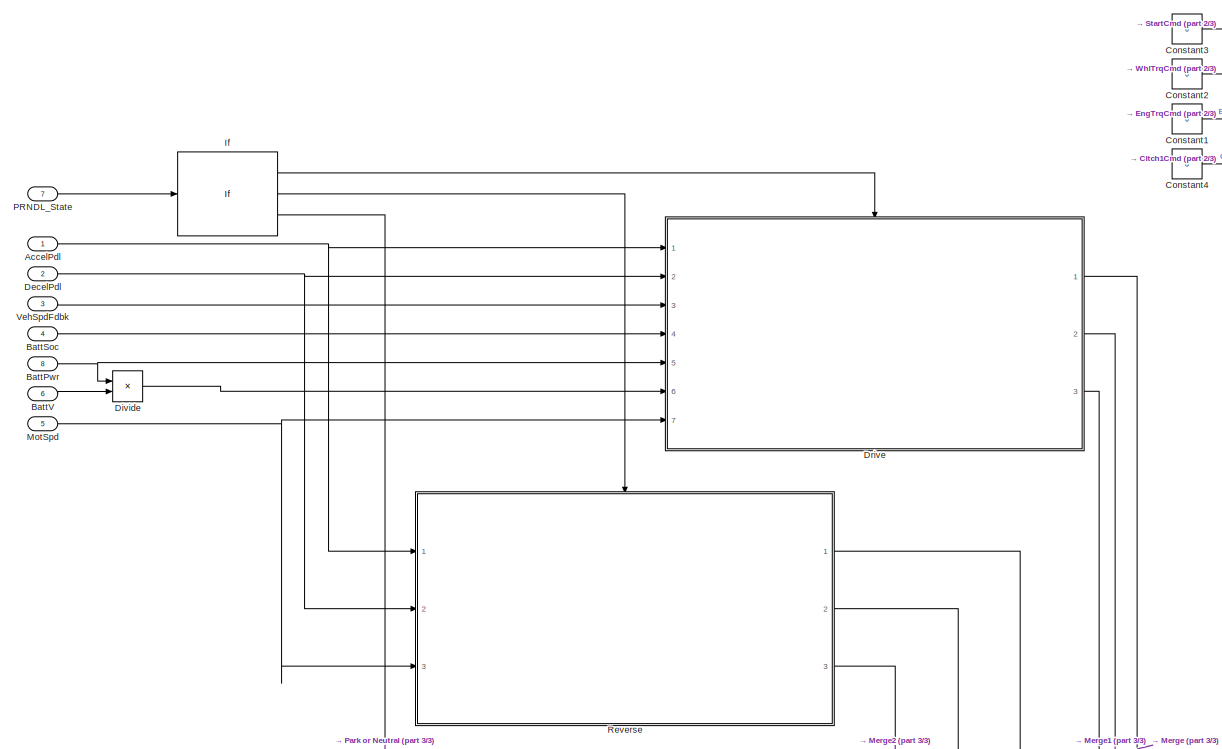
[diagram: root canvas - part 1/3, full width, middle band]
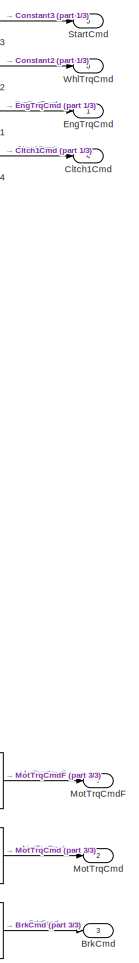
[diagram: root canvas - part 2/3, right side, full height]
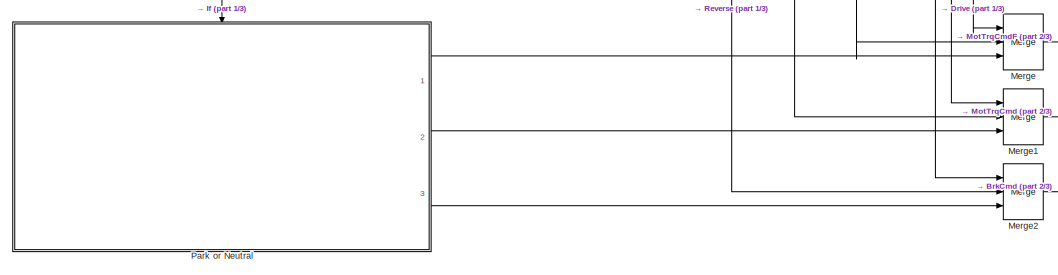
[diagram: root canvas - part 3/3, full width, bottom band]
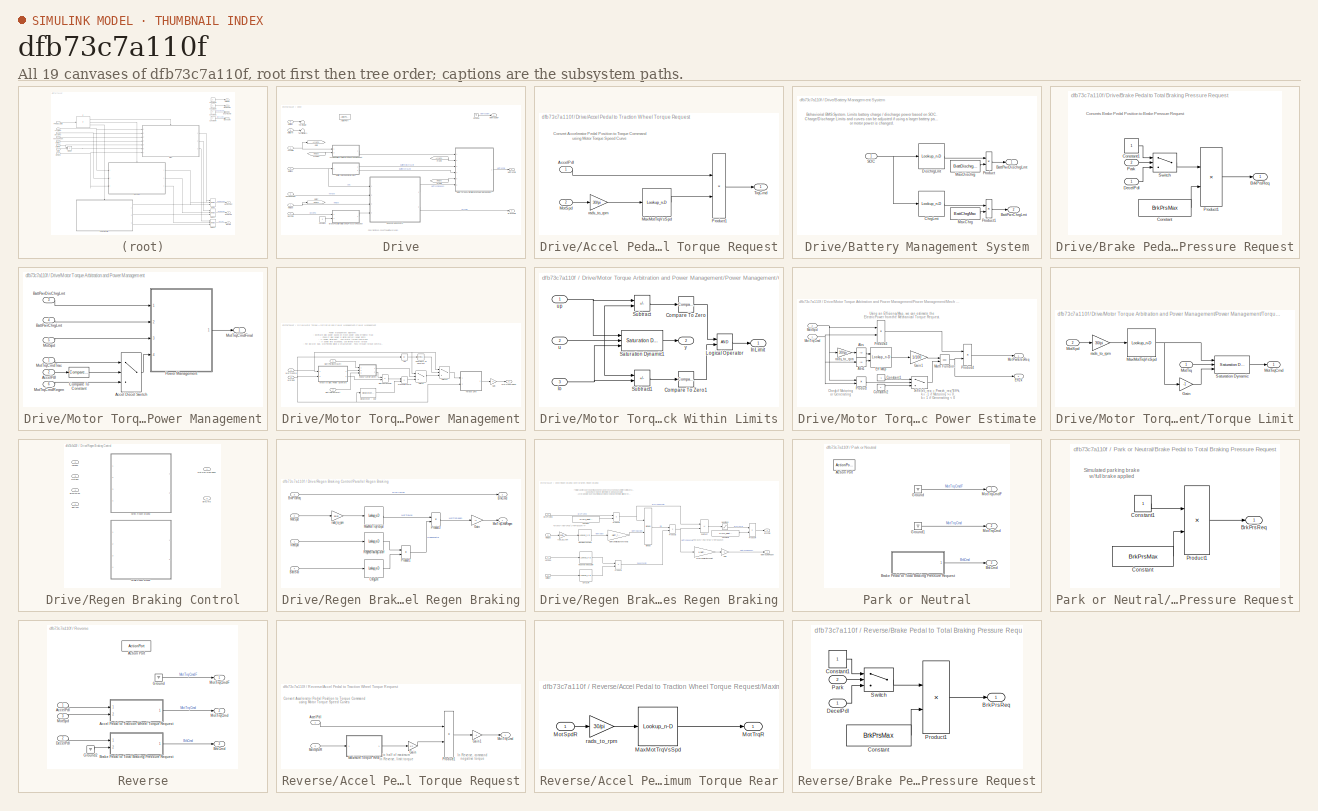
[diagram: thumbnail index - all 19 canvases of the model, root first then tree order]
MODEL slx_dfb73c7a110f
KIND model
CONFIG AbsTol = auto
CONFIG EnableMultiTasking = on
CONFIG FixedStep = auto
CONFIG MaxStep = auto
CONFIG MinStep = auto
CONFIG RelTol = 1e-3
CONFIG SampleTimeConstraint = Unconstrained
CONFIG Solver = VariableStepAuto
CONFIG SolverName = VariableStepAuto
CONFIG StartTime = 0.0
CONFIG StopTime = 10.0
WORKSPACE source: mxarray member
WORKSPACE BattChrgMax = -80000
WORKSPACE BattDischrgMax = 80000
WORKSPACE BrkPrsMax = 5000000
WORKSPACE ChrgLmt_bpt = [1 1 1 1 1 1 1 1 0.7 0.35 0]
WORKSPACE DischrgLmt_bpt = [0 0.35 0.7 1 1 1 1 1 1 1 1]
WORKSPACE MotMapEff = 0
WORKSPACE MotSpd = [0 1000 2000 2728.370453 3000 4000 5000 6000 7000 8000 9000 10000]
WORKSPACE MotTrq = [280 280 280 280 254.6479089 190.9859317 152.7887454 127.3239545 109.1348181 95.49296586 84.88263632 76.39437268]
WORKSPACE Ndiff = 7.94
WORKSPACE RegenBrkCutOff = [0 1]
WORKSPACE RegenBrkSpd_bpt = [5 9]
WORKSPACE Rm = 0.15
WORKSPACE SOC_bpt = [0 10 20 30 40 50 60 70 80 90 100]
WORKSPACE T_eff_bp = [0 20 40 60 80 100 120 140 160 180 200 220 ... (15 elements, 1x15)]
WORKSPACE disk_abore = 0.05
WORKSPACE efficiency_table = [85 85 85 85 85 85 85 85 85 85 85 85 ... (180 elements, 12x15)]
WORKSPACE mu_kinetic = 0.35
WORKSPACE num_pads = 2
WORKSPACE w_eff_bp = [0 1000 2000 2728.370453 3000 4000 5000 6000 7000 8000 9000 10000]
BLOCK [Inport] AccelPdl
  OutDataTypeStr = double
  PortDimensions = 1
  SampleTime = [0.01,0]
  SamplingMode = Sample based
  SignalType = real
BLOCK [Inport] BattPwr 
  Port = 8
BLOCK [Inport] BattSoc
  OutDataTypeStr = double
  Port = 4
  PortDimensions = 1
  SampleTime = [0.01,0]
  SamplingMode = Sample based
  SignalType = real
BLOCK [Inport] BattV
  OutDataTypeStr = double
  Port = 6
  PortDimensions = 1
  SampleTime = [0.01,0]
  SamplingMode = Sample based
  SignalType = real
BLOCK [Outport] BrkCmd
  OutDataTypeStr = double
  Port = 3
  PortDimensions = 1
  SampleTime = [0.01,0]
  SamplingMode = Sample based
  SignalType = real
  VectorParamsAs1DForOutWhenUnconnected = off
BLOCK [Outport] Cltch1Cmd
  OutDataTypeStr = double
  Port = 4
  PortDimensions = 1
  SampleTime = [0.01,0]
  SamplingMode = Sample based
  SignalType = real
  VectorParamsAs1DForOutWhenUnconnected = off
BLOCK [Constant] Constant1
  SampleTime = 0.01
  Value = 0
BLOCK [Constant] Constant2
  SampleTime = 0.01
  Value = 0
BLOCK [Constant] Constant3
  SampleTime = 0.01
  Value = 0
BLOCK [Constant] Constant4
  SampleTime = 0.01
  Value = 0
BLOCK [Inport] DecelPdl
  OutDataTypeStr = double
  Port = 2
  PortDimensions = 1
  SampleTime = [0.01,0]
  SamplingMode = Sample based
  SignalType = real
BLOCK [Product] Divide
  Inputs = */
  Ports = [2, 1]
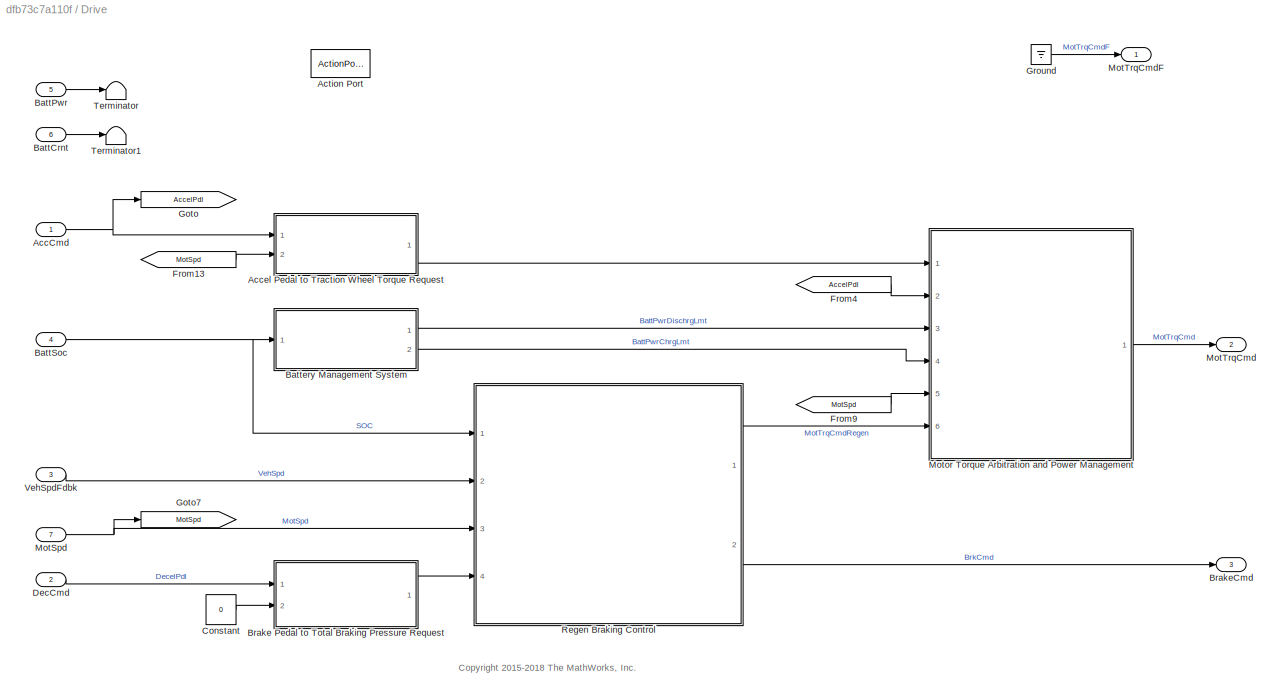
BLOCK [SubSystem] Drive
  Ports = [7, 3, 0, 0, 0, 0, 0, 1]
  RequestExecContextInheritance = off
  TreatAsAtomicUnit = on
BLOCK [Inport] Drive/AccCmd
BLOCK [SubSystem] Drive/Accel Pedal to Traction Wheel Torque Request
  Ports = [2, 1]
  RequestExecContextInheritance = off
BLOCK [Inport] Drive/Accel Pedal to Traction Wheel Torque Request/AccelPdl
BLOCK [Lookup_n-D] Drive/Accel Pedal to Traction Wheel Torque Request/MaxMotTrqVsSpd
  BreakpointsForDimension1 = w_eff_bp_EV_rear
  ExtrapMethod = Clip
  InternalRulePriority = Speed
  NumberOfTableDimensions = 1
  OutDataTypeStr = Inherit: Inherit from 'Table data'
  Ports = [1, 1]
  RndMeth = Simplest
  Table = T_t_EV_rear
  UseLastTableValue = on
BLOCK [Inport] Drive/Accel Pedal to Traction Wheel Torque Request/MotSpd
  Port = 2
BLOCK [Product] Drive/Accel Pedal to Traction Wheel Torque Request/Product1
  Ports = [2, 1]
BLOCK [Outport] Drive/Accel Pedal to Traction Wheel Torque Request/TrqCmd
  VectorParamsAs1DForOutWhenUnconnected = off
BLOCK [Gain] Drive/Accel Pedal to Traction Wheel Torque Request/rads_to_rpm
  Gain = 30/pi
BLOCK [ActionPort] Drive/Action Port
  ActionPortLabel = if(u1 >= 1)
  InitializeStates = reset
BLOCK [Inport] Drive/BattCrnt
  Port = 6
BLOCK [Inport] Drive/BattPwr
  Port = 5
BLOCK [Inport] Drive/BattSoc
  Port = 4
BLOCK [SubSystem] Drive/Battery Management System
  Ports = [1, 2]
  RequestExecContextInheritance = off
BLOCK [Outport] Drive/Battery Management System/BattPwrChrgLmt
  Port = 2
  VectorParamsAs1DForOutWhenUnconnected = off
BLOCK [Outport] Drive/Battery Management System/BattPwrDischrgLmt
  VectorParamsAs1DForOutWhenUnconnected = off
BLOCK [Lookup_n-D] Drive/Battery Management System/ChrgLmt
  BreakpointsForDimension1 = SOC_bpt
  ExtrapMethod = Clip
  InternalRulePriority = Speed
  NumberOfTableDimensions = 1
  Ports = [1, 1]
  RndMeth = Simplest
  Table = ChrgLmt_bpt
  UseLastTableValue = on
BLOCK [Lookup_n-D] Drive/Battery Management System/DischrgLmt
  BreakpointsForDimension1 = SOC_bpt
  ExtrapMethod = Clip
  InternalRulePriority = Speed
  NumberOfTableDimensions = 1
  Ports = [1, 1]
  RndMeth = Simplest
  Table = DischrgLmt_bpt
  UseLastTableValue = on
BLOCK [Constant] Drive/Battery Management System/MaxChrg
  Value = BattChrgMax
BLOCK [Constant] Drive/Battery Management System/MaxDischrg
  Value = BattDischrgMax
BLOCK [Product] Drive/Battery Management System/Product
  Ports = [2, 1]
BLOCK [Product] Drive/Battery Management System/Product1
  Ports = [2, 1]
BLOCK [Inport] Drive/Battery Management System/SOC
BLOCK [SubSystem] Drive/Brake Pedal to Total Braking Pressure Request
  Ports = [2, 1]
  RequestExecContextInheritance = off
BLOCK [Outport] Drive/Brake Pedal to Total Braking Pressure Request/BrkPrsReq
  VectorParamsAs1DForOutWhenUnconnected = off
BLOCK [Constant] Drive/Brake Pedal to Total Braking Pressure Request/Constant
  Value = BrkPrsMax
BLOCK [Constant] Drive/Brake Pedal to Total Braking Pressure Request/Constant1
BLOCK [Inport] Drive/Brake Pedal to Total Braking Pressure Request/DecelPdl
BLOCK [Inport] Drive/Brake Pedal to Total Braking Pressure Request/Park
  Port = 2
BLOCK [Product] Drive/Brake Pedal to Total Braking Pressure Request/Product1
  Ports = [2, 1]
BLOCK [Switch] Drive/Brake Pedal to Total Braking Pressure Request/Switch
  Criteria = u2 > Threshold
  InputSameDT = off
  SaturateOnIntegerOverflow = off
BLOCK [Outport] Drive/BrakeCmd
  Port = 3
  VectorParamsAs1DForOutWhenUnconnected = off
BLOCK [Constant] Drive/Constant
  Value = 0
BLOCK [Inport] Drive/DecCmd
  OutDataTypeStr = double
  Port = 2
BLOCK [From] Drive/From13
  GotoTag = MotSpd
BLOCK [From] Drive/From4
  GotoTag = AccelPdl
BLOCK [From] Drive/From9
  GotoTag = MotSpd
BLOCK [Goto] Drive/Goto
  GotoTag = AccelPdl
BLOCK [Goto] Drive/Goto7
  GotoTag = MotSpd
BLOCK [Ground] Drive/Ground
BLOCK [Inport] Drive/MotSpd
  Port = 7
BLOCK [Outport] Drive/MotTrqCmd
  Port = 2
  VectorParamsAs1DForOutWhenUnconnected = off
BLOCK [Outport] Drive/MotTrqCmdF
  VectorParamsAs1DForOutWhenUnconnected = off
BLOCK [SubSystem] Drive/Motor Torque Arbitration and Power Management
  Ports = [6, 1]
  RequestExecContextInheritance = off
BLOCK [Switch] Drive/Motor Torque Arbitration and Power Management/Accel Decel Switch
  Criteria = u2 > Threshold
  InputSameDT = off
  SaturateOnIntegerOverflow = off
BLOCK [Inport] Drive/Motor Torque Arbitration and Power Management/AccelPdl
  Port = 2
BLOCK [Inport] Drive/Motor Torque Arbitration and Power Management/BattPwrChrgLmt 
  Port = 4
BLOCK [Inport] Drive/Motor Torque Arbitration and Power Management/BattPwrDisChrgLmt
  Port = 3
BLOCK [Reference] Drive/Motor Torque Arbitration and Power Management/Compare To Constant  REF=simulink/Logic and Bit
Operations/Compare
To Constant
  Ports = [1, 1]
  SourceBlock = simulink/Logic and Bit\nOperations/Compare\nTo Constant
  SourceProductBaseCode = SL
  SourceType = Compare To Constant
BLOCK [Inport] Drive/Motor Torque Arbitration and Power Management/MotSpd
  Port = 5
BLOCK [Outport] Drive/Motor Torque Arbitration and Power Management/MotTrqCmdFinal
  VectorParamsAs1DForOutWhenUnconnected = off
BLOCK [Inport] Drive/Motor Torque Arbitration and Power Management/MotTrqCmdRegen
  Port = 6
BLOCK [Inport] Drive/Motor Torque Arbitration and Power Management/MotTrqCmdTrac
BLOCK [SubSystem] Drive/Motor Torque Arbitration and Power Management/Power Management
  Ports = [4, 1]
  RequestExecContextInheritance = off
BLOCK [Abs] Drive/Motor Torque Arbitration and Power Management/Power Management/Abs
  SaturateOnIntegerOverflow = off
BLOCK [Inport] Drive/Motor Torque Arbitration and Power Management/Power Management/BattPwrChrgLmt
  Port = 2
BLOCK [Inport] Drive/Motor Torque Arbitration and Power Management/Power Management/BattPwrDischrgLmt
BLOCK [SubSystem] Drive/Motor Torque Arbitration and Power Management/Power Management/Check Within Limits
  Ports = [3, 2]
  RequestExecContextInheritance = off
BLOCK [Reference] Drive/Motor Torque Arbitration and Power Management/Power Management/Check Within Limits/Compare To Zero  REF=simulink/Logic and Bit
Operations/Compare
To Zero
  Ports = [1, 1]
  SourceBlock = simulink/Logic and Bit\nOperations/Compare\nTo Zero
  SourceProductBaseCode = SL
  SourceType = Compare To Zero
BLOCK [Reference] Drive/Motor Torque Arbitration and Power Management/Power Management/Check Within Limits/Compare To Zero1  REF=simulink/Logic and Bit
Operations/Compare
To Zero
  Ports = [1, 1]
  SourceBlock = simulink/Logic and Bit\nOperations/Compare\nTo Zero
  SourceProductBaseCode = SL
  SourceType = Compare To Zero
BLOCK [Outport] Drive/Motor Torque Arbitration and Power Management/Power Management/Check Within Limits/InLimit
  VectorParamsAs1DForOutWhenUnconnected = off
BLOCK [Logic] Drive/Motor Torque Arbitration and Power Management/Power Management/Check Within Limits/Logical Operator
  AllPortsSameDT = off
  OutDataTypeStr = boolean
  Ports = [2, 1]
BLOCK [Reference] Drive/Motor Torque Arbitration and Power Management/Power Management/Check Within Limits/Saturation Dynamic1  REF=simulink/Discontinuities/Saturation
Dynamic
  Ports = [3, 1]
  SourceBlock = simulink/Discontinuities/Saturation\nDynamic
  SourceProductBaseCode = SL
  SourceType = Saturation Dynamic
BLOCK [Sum] Drive/Motor Torque Arbitration and Power Management/Power Management/Check Within Limits/Subtract
  IconShape = rectangular
  Inputs = +-
  Ports = [2, 1]
BLOCK [Sum] Drive/Motor Torque Arbitration and Power Management/Power Management/Check Within Limits/Subtract1
  IconShape = rectangular
  Inputs = -+
  Ports = [2, 1]
BLOCK [Inport] Drive/Motor Torque Arbitration and Power Management/Power Management/Check Within Limits/lo
  Port = 3
BLOCK [Inport] Drive/Motor Torque Arbitration and Power Management/Power Management/Check Within Limits/u
  Port = 2
BLOCK [Inport] Drive/Motor Torque Arbitration and Power Management/Power Management/Check Within Limits/up
BLOCK [Outport] Drive/Motor Torque Arbitration and Power Management/Power Management/Check Within Limits/y
  Port = 2
  VectorParamsAs1DForOutWhenUnconnected = off
BLOCK [Reference] Drive/Motor Torque Arbitration and Power Management/Power Management/Compare To Constant  REF=simulink/Logic and Bit
Operations/Compare
To Constant
  Ports = [1, 1]
  SourceBlock = simulink/Logic and Bit\nOperations/Compare\nTo Constant
  SourceProductBaseCode = SL
  SourceType = Compare To Constant
BLOCK [Product] Drive/Motor Torque Arbitration and Power Management/Power Management/ElecToMechPwr
  Inputs = */
  Ports = [2, 1]
BLOCK [Gain] Drive/Motor Torque Arbitration and Power Management/Power Management/Gain
BLOCK [SubSystem] Drive/Motor Torque Arbitration and Power Management/Power Management/Mech to Elec Power Estimate
  Ports = [2, 2]
  RequestExecContextInheritance = off
BLOCK [Abs] Drive/Motor Torque Arbitration and Power Management/Power Management/Mech to Elec Power Estimate/Abs
  SaturateOnIntegerOverflow = off
BLOCK [Abs] Drive/Motor Torque Arbitration and Power Management/Power Management/Mech to Elec Power Estimate/Abs1
  SaturateOnIntegerOverflow = off
BLOCK [Constant] Drive/Motor Torque Arbitration and Power Management/Power Management/Mech to Elec Power Estimate/Constant1
  SampleTime = -1
  Value = -1
BLOCK [Constant] Drive/Motor Torque Arbitration and Power Management/Power Management/Mech to Elec Power Estimate/Constant2
  SampleTime = -1
BLOCK [Lookup_n-D] Drive/Motor Torque Arbitration and Power Management/Power Management/Mech to Elec Power Estimate/Eff Map
  BreakpointsForDimension1 = w_eff_bp
  BreakpointsForDimension2 = T_eff_bp
  ExtrapMethod = Clip
  InternalRulePriority = Speed
  OutDataTypeStr = Inherit: Inherit from 'Table data'
  Ports = [2, 1]
  RndMeth = Simplest
  Table = efficiency_table
  UseLastTableValue = on
BLOCK [Outport] Drive/Motor Torque Arbitration and Power Management/Power Management/Mech to Elec Power Estimate/Eff2k
  Port = 2
  VectorParamsAs1DForOutWhenUnconnected = off
BLOCK [Gain] Drive/Motor Torque Arbitration and Power Management/Power Management/Mech to Elec Power Estimate/Gain1
  Gain = 1/100
BLOCK [Math] Drive/Motor Torque Arbitration and Power Management/Power Management/Mech to Elec Power Estimate/Math Function
  Operator = pow
  OutputSignalType = real
  Ports = [2, 1]
  SignedPower = on
BLOCK [Outport] Drive/Motor Torque Arbitration and Power Management/Power Management/Mech to Elec Power Estimate/MotPwrElecReq
  VectorParamsAs1DForOutWhenUnconnected = off
BLOCK [Inport] Drive/Motor Torque Arbitration and Power Management/Power Management/Mech to Elec Power Estimate/MotSpd
  Port = 2
BLOCK [Inport] Drive/Motor Torque Arbitration and Power Management/Power Management/Mech to Elec Power Estimate/MotTrqCmd
BLOCK [Product] Drive/Motor Torque Arbitration and Power Management/Power Management/Mech to Elec Power Estimate/Product
  Ports = [2, 1]
BLOCK [Product] Drive/Motor Torque Arbitration and Power Management/Power Management/Mech to Elec Power Estimate/Product3
  Ports = [2, 1]
BLOCK [Product] Drive/Motor Torque Arbitration and Power Management/Power Management/Mech to Elec Power Estimate/Product4
  Ports = [2, 1]
BLOCK [Switch] Drive/Motor Torque Arbitration and Power Management/Power Management/Mech to Elec Power Estimate/Switch2
  InputSameDT = off
  SaturateOnIntegerOverflow = off
BLOCK [Gain] Drive/Motor Torque Arbitration and Power Management/Power Management/Mech to Elec Power Estimate/rads_to_rpm
  Gain = 30/pi
  NameLocation = top
BLOCK [Product] Drive/Motor Torque Arbitration and Power Management/Power Management/MechPwrToTrq
  Inputs = */
  Ports = [2, 1]
BLOCK [Inport] Drive/Motor Torque Arbitration and Power Management/Power Management/MotSpd
  Port = 3
BLOCK [Inport] Drive/Motor Torque Arbitration and Power Management/Power Management/MotTrqCmd
  Port = 4
BLOCK [Outport] Drive/Motor Torque Arbitration and Power Management/Power Management/MotTrqCmdFinal
  VectorParamsAs1DForOutWhenUnconnected = off
BLOCK [Switch] Drive/Motor Torque Arbitration and Power Management/Power Management/Switch
  Criteria = u2 > Threshold
  InputSameDT = off
  SaturateOnIntegerOverflow = off
BLOCK [Switch] Drive/Motor Torque Arbitration and Power Management/Power Management/Switch1
  Criteria = u2 > Threshold
  InputSameDT = off
  SaturateOnIntegerOverflow = off
BLOCK [SubSystem] Drive/Motor Torque Arbitration and Power Management/Power Management/Torque Limit
  Ports = [2, 1]
  RequestExecContextInheritance = off
BLOCK [Gain] Drive/Motor Torque Arbitration and Power Management/Power Management/Torque Limit/Gain
  Gain = -1
BLOCK [Lookup_n-D] Drive/Motor Torque Arbitration and Power Management/Power Management/Torque Limit/MaxMotTrqVsSpd
  BreakpointsForDimension1 = w_eff_bp_EV_rear
  ExtrapMethod = Clip
  InternalRulePriority = Speed
  NumberOfTableDimensions = 1
  OutDataTypeStr = Inherit: Inherit from 'Table data'
  Ports = [1, 1]
  RndMeth = Simplest
  Table = T_t_EV_rear
  UseLastTableValue = on
BLOCK [Inport] Drive/Motor Torque Arbitration and Power Management/Power Management/Torque Limit/MotSpd
  Port = 2
BLOCK [Inport] Drive/Motor Torque Arbitration and Power Management/Power Management/Torque Limit/MotTrq
BLOCK [Outport] Drive/Motor Torque Arbitration and Power Management/Power Management/Torque Limit/MotTrqCmd
  VectorParamsAs1DForOutWhenUnconnected = off
BLOCK [Reference] Drive/Motor Torque Arbitration and Power Management/Power Management/Torque Limit/Saturation Dynamic  REF=simulink/Discontinuities/Saturation
Dynamic
  Ports = [3, 1]
  SourceBlock = simulink/Discontinuities/Saturation\nDynamic
  SourceProductBaseCode = SL
  SourceType = Saturation Dynamic
BLOCK [Gain] Drive/Motor Torque Arbitration and Power Management/Power Management/Torque Limit/rads_to_rpm
  Gain = 30/pi
BLOCK [Reference] Drive/Motor Torque Arbitration and Power Management/Power Management/div0protect - poly  REF=autolibutils/div0protect - poly
  Ports = [1, 1]
  SourceBlock = autolibutils/div0protect - poly
  SourceProductBaseCode = PW,MT,VE,VP
BLOCK [SubSystem] Drive/Regen Braking Control
  LabelModeActiveChoice = Variant
  Ports = [4, 2]
  RequestExecContextInheritance = off
  Variant = on
  VariantControl = (default)
  VariantControlMode = Label
BLOCK [Outport] Drive/Regen Braking Control/ BrkCmd
  Port = 2
  VectorParamsAs1DForOutWhenUnconnected = off
BLOCK [Outport] Drive/Regen Braking Control/ MotTrqCmdRegen
  VectorParamsAs1DForOutWhenUnconnected = off
BLOCK [Inport] Drive/Regen Braking Control/BattSoc 
BLOCK [Inport] Drive/Regen Braking Control/BrkPrsReq 
  Port = 4
BLOCK [Inport] Drive/Regen Braking Control/MotSpd 
  Port = 3
BLOCK [SubSystem] Drive/Regen Braking Control/Parallel Regen Braking
  InitFcn = %[~]=autosharedicon('autolibutils',gcb,0);
  Ports = [4, 2]
  RequestExecContextInheritance = off
  VariantControl = (default)
BLOCK [Outport] Drive/Regen Braking Control/Parallel Regen Braking/ BrkCmd
  Port = 2
  VectorParamsAs1DForOutWhenUnconnected = off
BLOCK [Outport] Drive/Regen Braking Control/Parallel Regen Braking/ MotTrqCmdRegen
  VectorParamsAs1DForOutWhenUnconnected = off
BLOCK [Inport] Drive/Regen Braking Control/Parallel Regen Braking/BattSoc
  Port = 4
BLOCK [Inport] Drive/Regen Braking Control/Parallel Regen Braking/BrkPrsReq 
  Port = 3
BLOCK [Lookup_n-D] Drive/Regen Braking Control/Parallel Regen Braking/ChrgLmt
  BreakpointsForDimension1 = [0:10:100]
  ExtrapMethod = Clip
  InternalRulePriority = Speed
  NumberOfTableDimensions = 1
  Ports = [1, 1]
  RndMeth = Simplest
  Table = [1 1 1 1 1 1 1 1 0.7 0.35 0]
  UseLastTableValue = on
BLOCK [Gain] Drive/Regen Braking Control/Parallel Regen Braking/Gain
  Gain = -1
BLOCK [Lookup_n-D] Drive/Regen Braking Control/Parallel Regen Braking/MaxMotTrqVsSpd
  BreakpointsForDimension1 = w_eff_bp_EV_rear
  ExtrapMethod = Clip
  InternalRulePriority = Speed
  NumberOfTableDimensions = 1
  OutDataTypeStr = Inherit: Inherit from 'Table data'
  Ports = [1, 1]
  RndMeth = Simplest
  Table = T_t_EV_rear
  UseLastTableValue = on
BLOCK [Inport] Drive/Regen Braking Control/Parallel Regen Braking/MotSpd
  Port = 2
BLOCK [Product] Drive/Regen Braking Control/Parallel Regen Braking/Product1
  Ports = [2, 1]
BLOCK [Product] Drive/Regen Braking Control/Parallel Regen Braking/Product3
  Ports = [2, 1]
BLOCK [Lookup_n-D] Drive/Regen Braking Control/Parallel Regen Braking/RegenBrakingCutoff
  BreakpointsForDimension1 = [2.2 4.5]
  ExtrapMethod = Clip
  InternalRulePriority = Speed
  NumberOfTableDimensions = 1
  Ports = [1, 1]
  RndMeth = Simplest
  Table = [0 1]
  UseLastTableValue = on
BLOCK [Inport] Drive/Regen Braking Control/Parallel Regen Braking/VehSpd
BLOCK [Gain] Drive/Regen Braking Control/Parallel Regen Braking/rads_to_rpm
  Gain = 30/pi
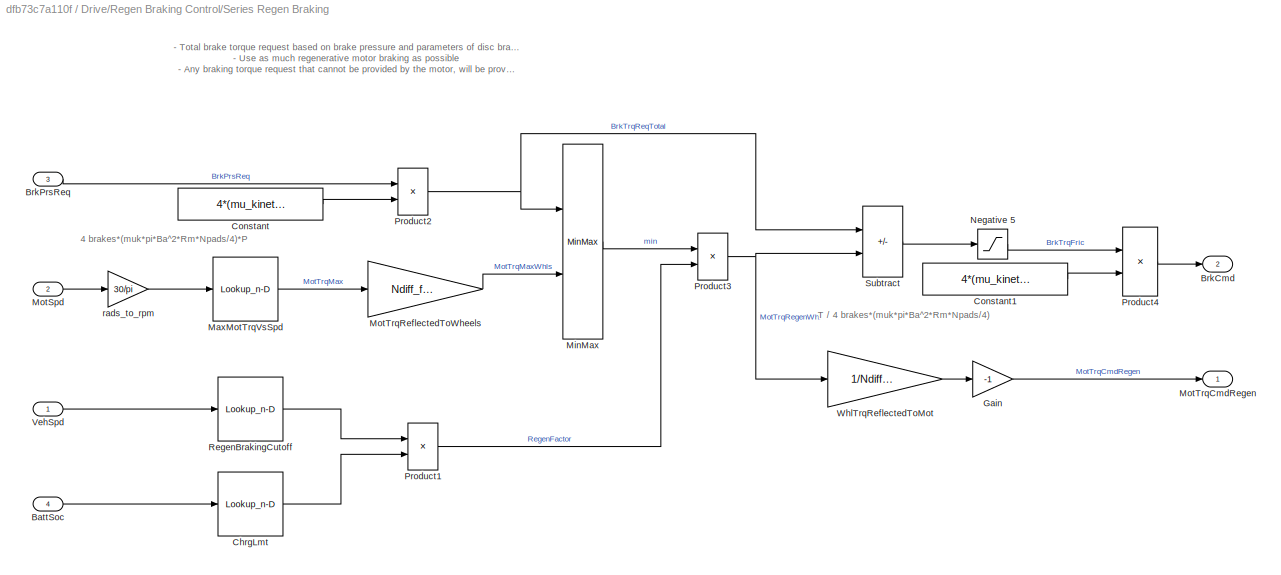
BLOCK [SubSystem] Drive/Regen Braking Control/Series Regen Braking
  InitFcn = %[~]=autosharedicon('autolibutils',gcb,0);
  Ports = [4, 2]
  RequestExecContextInheritance = off
  VariantControl = Variant
BLOCK [Outport] Drive/Regen Braking Control/Series Regen Braking/ BrkCmd
  Port = 2
  VectorParamsAs1DForOutWhenUnconnected = off
BLOCK [Outport] Drive/Regen Braking Control/Series Regen Braking/ MotTrqCmdRegen
  VectorParamsAs1DForOutWhenUnconnected = off
BLOCK [Inport] Drive/Regen Braking Control/Series Regen Braking/BattSoc
  Port = 4
BLOCK [Inport] Drive/Regen Braking Control/Series Regen Braking/BrkPrsReq 
  Port = 3
BLOCK [Lookup_n-D] Drive/Regen Braking Control/Series Regen Braking/ChrgLmt
  BreakpointsForDimension1 = SOC_bpt
  ExtrapMethod = Clip
  InternalRulePriority = Speed
  NumberOfTableDimensions = 1
  Ports = [1, 1]
  RndMeth = Simplest
  Table = ChrgLmt_bpt
  UseLastTableValue = on
BLOCK [Constant] Drive/Regen Braking Control/Series Regen Braking/Constant
  Value = 4*(mu_kinetic*pi*disk_abore^2*Rm*num_pads/4)
BLOCK [Constant] Drive/Regen Braking Control/Series Regen Braking/Constant1
  Value = 4*(mu_kinetic*pi*disk_abore^2*Rm*num_pads/4)
BLOCK [Gain] Drive/Regen Braking Control/Series Regen Braking/Gain
  Gain = -1
BLOCK [Lookup_n-D] Drive/Regen Braking Control/Series Regen Braking/MaxMotTrqVsSpd
  BreakpointsForDimension1 = w_eff_bp_EV_rear
  ExtrapMethod = Clip
  InternalRulePriority = Speed
  NumberOfTableDimensions = 1
  OutDataTypeStr = Inherit: Inherit from 'Table data'
  Ports = [1, 1]
  RndMeth = Simplest
  Table = T_t_EV_rear
  UseLastTableValue = on
BLOCK [MinMax] Drive/Regen Braking Control/Series Regen Braking/MinMax
  Inputs = 2
  Ports = [2, 1]
BLOCK [Inport] Drive/Regen Braking Control/Series Regen Braking/MotSpd
  Port = 2
BLOCK [Gain] Drive/Regen Braking Control/Series Regen Braking/MotTrqReflectedToWheels
  Gain = Ndiff_front
BLOCK [Saturate] Drive/Regen Braking Control/Series Regen Braking/Negative 5
  LowerLimit = 0
  UpperLimit = inf
BLOCK [Product] Drive/Regen Braking Control/Series Regen Braking/Product1
  Ports = [2, 1]
BLOCK [Product] Drive/Regen Braking Control/Series Regen Braking/Product2
  Ports = [2, 1]
BLOCK [Product] Drive/Regen Braking Control/Series Regen Braking/Product3
  Ports = [2, 1]
BLOCK [Product] Drive/Regen Braking Control/Series Regen Braking/Product4
  Inputs = */
  Ports = [2, 1]
BLOCK [Lookup_n-D] Drive/Regen Braking Control/Series Regen Braking/RegenBrakingCutoff
  BreakpointsForDimension1 = RegenBrkSpd_bpt
  ExtrapMethod = Clip
  InternalRulePriority = Speed
  NumberOfTableDimensions = 1
  Ports = [1, 1]
  RndMeth = Simplest
  Table = RegenBrkCutOff
  UseLastTableValue = on
BLOCK [Sum] Drive/Regen Braking Control/Series Regen Braking/Subtract
  IconShape = rectangular
  Inputs = +-
  Ports = [2, 1]
BLOCK [Inport] Drive/Regen Braking Control/Series Regen Braking/VehSpd
BLOCK [Gain] Drive/Regen Braking Control/Series Regen Braking/WhlTrqReflectedToMot
  Gain = 1/Ndiff_front
BLOCK [Gain] Drive/Regen Braking Control/Series Regen Braking/rads_to_rpm
  Gain = 30/pi
BLOCK [Inport] Drive/Regen Braking Control/VehSpd 
  Port = 2
BLOCK [Terminator] Drive/Terminator
BLOCK [Terminator] Drive/Terminator1
BLOCK [Inport] Drive/VehSpdFdbk
  Port = 3
BLOCK [Outport] EngTrqCmd
  OutDataTypeStr = double
  PortDimensions = 1
  SampleTime = [0.01,0]
  SamplingMode = Sample based
  SignalType = real
  VectorParamsAs1DForOutWhenUnconnected = off
BLOCK [If] If
  ElseIfExpressions = u1 == -1
  IfExpression = u1 >= 1
  Ports = [1, 3]
BLOCK [Merge] Merge
  Inputs = 3
  Ports = [3, 1]
BLOCK [Merge] Merge1
  Inputs = 3
  Ports = [3, 1]
BLOCK [Merge] Merge2
  Inputs = 3
  Ports = [3, 1]
BLOCK [Inport] MotSpd
  OutDataTypeStr = double
  Port = 5
  PortDimensions = 1
  SampleTime = [0.01,0]
  SamplingMode = Sample based
  SignalType = real
BLOCK [Outport] MotTrqCmd
  OutDataTypeStr = double
  Port = 2
  PortDimensions = 1
  SampleTime = [0.01,0]
  SamplingMode = Sample based
  SignalType = real
  VectorParamsAs1DForOutWhenUnconnected = off
BLOCK [Outport] MotTrqCmdF
  OutDataTypeStr = double
  Port = 7
  PortDimensions = 1
  SampleTime = [0.01,0]
  SamplingMode = Sample based
  SignalType = real
  VectorParamsAs1DForOutWhenUnconnected = off
BLOCK [Inport] PRNDL_State
  OutDataTypeStr = double
  Port = 7
  PortDimensions = 1
  SampleTime = [0.01,0]
  SamplingMode = Sample based
  SignalType = real
BLOCK [SubSystem] Park or Neutral
  Ports = [0, 3, 0, 0, 0, 0, 0, 1]
  RequestExecContextInheritance = off
  TreatAsAtomicUnit = on
BLOCK [ActionPort] Park or Neutral/Action Port
  ActionPortLabel = else
  InitializeStates = reset
BLOCK [SubSystem] Park or Neutral/Brake Pedal to Total Braking Pressure Request
  Ports = [0, 1]
  RequestExecContextInheritance = off
BLOCK [Outport] Park or Neutral/Brake Pedal to Total Braking Pressure Request/BrkPrsReq
  VectorParamsAs1DForOutWhenUnconnected = off
BLOCK [Constant] Park or Neutral/Brake Pedal to Total Braking Pressure Request/Constant
  Value = BrkPrsMax
BLOCK [Constant] Park or Neutral/Brake Pedal to Total Braking Pressure Request/Constant1
BLOCK [Product] Park or Neutral/Brake Pedal to Total Braking Pressure Request/Product1
  Ports = [2, 1]
BLOCK [Outport] Park or Neutral/BrkCmd
  OutDataTypeStr = double
  Port = 3
  PortDimensions = 1
  SampleTime = [0.01,0]
  SamplingMode = Sample based
  SignalType = real
  VectorParamsAs1DForOutWhenUnconnected = off
BLOCK [Ground] Park or Neutral/Ground
BLOCK [Ground] Park or Neutral/Ground1
BLOCK [Outport] Park or Neutral/MotTrqCmd
  OutDataTypeStr = double
  Port = 2
  PortDimensions = 1
  SampleTime = [0.01,0]
  SamplingMode = Sample based
  SignalType = real
  VectorParamsAs1DForOutWhenUnconnected = off
BLOCK [Outport] Park or Neutral/MotTrqCmdF
  OutDataTypeStr = double
  PortDimensions = 1
  SampleTime = [0.01,0]
  SamplingMode = Sample based
  SignalType = real
  VectorParamsAs1DForOutWhenUnconnected = off
BLOCK [SubSystem] Reverse
  Ports = [3, 3, 0, 0, 0, 0, 0, 1]
  RequestExecContextInheritance = off
  TreatAsAtomicUnit = on
BLOCK [SubSystem] Reverse/Accel Pedal to Traction Wheel Torque Request
  Ports = [2, 1]
  RequestExecContextInheritance = off
  VariantControl = 0
BLOCK [Inport] Reverse/Accel Pedal to Traction Wheel Torque Request/AccelPdl
BLOCK [Gain] Reverse/Accel Pedal to Traction Wheel Torque Request/Gain
  Gain = 1/2
BLOCK [Gain] Reverse/Accel Pedal to Traction Wheel Torque Request/Gain1
  Gain = -1
BLOCK [SubSystem] Reverse/Accel Pedal to Traction Wheel Torque Request/Maximum Torque Rear
  Ports = [1, 1]
  RequestExecContextInheritance = off
BLOCK [Lookup_n-D] Reverse/Accel Pedal to Traction Wheel Torque Request/Maximum Torque Rear/MaxMotTrqVsSpd
  BreakpointsForDimension1 = w_eff_bp_EV_rear
  ExtrapMethod = Clip
  InternalRulePriority = Speed
  NumberOfTableDimensions = 1
  OutDataTypeStr = Inherit: Inherit from 'Table data'
  Ports = [1, 1]
  RndMeth = Simplest
  Table = T_t_EV_rear
  UseLastTableValue = on
BLOCK [Inport] Reverse/Accel Pedal to Traction Wheel Torque Request/Maximum Torque Rear/MotSpdR
BLOCK [Outport] Reverse/Accel Pedal to Traction Wheel Torque Request/Maximum Torque Rear/MotTrqR
  VectorParamsAs1DForOutWhenUnconnected = off
BLOCK [Gain] Reverse/Accel Pedal to Traction Wheel Torque Request/Maximum Torque Rear/rads_to_rpm
  Gain = 30/pi
BLOCK [Inport] Reverse/Accel Pedal to Traction Wheel Torque Request/MotSpdR
  Port = 2
BLOCK [Outport] Reverse/Accel Pedal to Traction Wheel Torque Request/MotTrqCmd
  VectorParamsAs1DForOutWhenUnconnected = off
BLOCK [Product] Reverse/Accel Pedal to Traction Wheel Torque Request/Product1
  Ports = [2, 1]
BLOCK [Inport] Reverse/AccelPdl
  OutDataTypeStr = double
  PortDimensions = 1
  SampleTime = [0.01,0]
  SamplingMode = Sample based
  SignalType = real
BLOCK [ActionPort] Reverse/Action Port
  ActionPortLabel = elseif(u1 == -1)
  InitializeStates = reset
BLOCK [SubSystem] Reverse/Brake Pedal to Total Braking Pressure Request
  Ports = [2, 1]
  RequestExecContextInheritance = off
BLOCK [Outport] Reverse/Brake Pedal to Total Braking Pressure Request/BrkPrsReq
  VectorParamsAs1DForOutWhenUnconnected = off
BLOCK [Constant] Reverse/Brake Pedal to Total Braking Pressure Request/Constant
  Value = BrkPrsMax
BLOCK [Constant] Reverse/Brake Pedal to Total Braking Pressure Request/Constant1
BLOCK [Inport] Reverse/Brake Pedal to Total Braking Pressure Request/DecelPdl
BLOCK [Inport] Reverse/Brake Pedal to Total Braking Pressure Request/Park
  Port = 2
BLOCK [Product] Reverse/Brake Pedal to Total Braking Pressure Request/Product1
  Ports = [2, 1]
BLOCK [Switch] Reverse/Brake Pedal to Total Braking Pressure Request/Switch
  Criteria = u2 > Threshold
  InputSameDT = off
  SaturateOnIntegerOverflow = off
BLOCK [Outport] Reverse/BrkCmd
  OutDataTypeStr = double
  Port = 3
  PortDimensions = 1
  SampleTime = [0.01,0]
  SamplingMode = Sample based
  SignalType = real
  VectorParamsAs1DForOutWhenUnconnected = off
BLOCK [Inport] Reverse/DecelPdl
  OutDataTypeStr = double
  Port = 2
  PortDimensions = 1
  SampleTime = [0.01,0]
  SamplingMode = Sample based
  SignalType = real
BLOCK [Ground] Reverse/Ground
BLOCK [Ground] Reverse/Ground2
BLOCK [Inport] Reverse/MotSpd
  OutDataTypeStr = double
  Port = 3
  PortDimensions = 1
  SampleTime = [0.01,0]
  SamplingMode = Sample based
  SignalType = real
BLOCK [Outport] Reverse/MotTrqCmd
  OutDataTypeStr = double
  Port = 2
  PortDimensions = 1
  SampleTime = [0.01,0]
  SamplingMode = Sample based
  SignalType = real
  VectorParamsAs1DForOutWhenUnconnected = off
BLOCK [Outport] Reverse/MotTrqCmdF
  OutDataTypeStr = double
  PortDimensions = 1
  SampleTime = [0.01,0]
  SamplingMode = Sample based
  SignalType = real
  VectorParamsAs1DForOutWhenUnconnected = off
BLOCK [Outport] StartCmd
  Port = 5
  SamplingMode = Sample based
  VectorParamsAs1DForOutWhenUnconnected = off
BLOCK [Inport] VehSpdFdbk
  OutDataTypeStr = double
  Port = 3
  PortDimensions = 1
  SampleTime = [0.01,0]
  SamplingMode = Sample based
  SignalType = real
BLOCK [Outport] WhlTrqCmd
  Port = 6
  SamplingMode = Sample based
  VectorParamsAs1DForOutWhenUnconnected = off
ANNOTATION Drive: <copyright redacted>
ANNOTATION Drive/Accel Pedal to Traction Wheel Torque Request: Convert Accelerator Pedal Position to Torque Command using Motor Torque Speed Curve
ANNOTATION Drive/Battery Management System: Behaviorial BMS System. Limits battery charge / discharge power based on SOC. Charge/Discharge Limits and curves can be adjusted if using a larger battery pack or motor power is changed.
ANNOTATION Drive/Brake Pedal to Total Braking Pressure Request: Converts Brake Pedal Position to Brake Pressure Request
ANNOTATION Drive/Motor Torque Arbitration and Power Management/Power Management: Power Management algorithm: - Estimate Elec power based on mech power using efficiency map - Check if Elec power is within battery power limits - If power within limit , use motor torque command - If power limit exceeded, use limited motor torque - For low Mot Spd, MotPwrReq will be a small number. Pass through torque command until Mot Spd > 2.
ANNOTATION Drive/Motor Torque Arbitration and Power Management/Power Management/Mech to Elec Power Estimate: Check if Motoring or Generating
ANNOTATION Drive/Motor Torque Arbitration and Power Management/Power Management/Mech to Elec Power Estimate: Pelec_req = Pmech_req*Eff^k, k = -1 if Motoring >= 0, k = 1 if Generating < 0
ANNOTATION Drive/Motor Torque Arbitration and Power Management/Power Management/Mech to Elec Power Estimate: Using an Efficiency Map, we can estimate the Electric Power from the Mechanical Torque Request.
ANNOTATION Drive/Regen Braking Control/Series Regen Braking: 4 brakes*(muk*pi*Ba^2*Rm*Npads/4)*P
ANNOTATION Drive/Regen Braking Control/Series Regen Braking: - Total brake torque request based on brake pressure and parameters of disc brakes - Use as much regenerative motor braking as possible - Any braking torque request that cannot be provided by the motor, will be provided by the friction brakes
ANNOTATION Drive/Regen Braking Control/Series Regen Braking: T / 4 brakes*(muk*pi*Ba^2*Rm*Npads/4)
ANNOTATION Park or Neutral/Brake Pedal to Total Braking Pressure Request: Simulated parking brake w/ full brake applied
ANNOTATION Reverse/Accel Pedal to Traction Wheel Torque Request: Convert Accelerator Pedal Position to Torque Command using Motor Torque Speed Curves
ANNOTATION Reverse/Accel Pedal to Traction Wheel Torque Request: In Reverse, command negative torque
ANNOTATION Reverse/Accel Pedal to Traction Wheel Torque Request: In Reverse, limit torque to half of maximum
NET AccelPdl:1 -> Drive:1, Reverse:1
NET BattPwr :1 -> Divide:1, Drive:5
LINE BattSoc:1 -> Drive:4
LINE BattV:1 -> Divide:2
LINE Constant1:1 -> EngTrqCmd:1
LINE Constant2:1 -> WhlTrqCmd:1
LINE Constant3:1 -> StartCmd:1
LINE Constant4:1 -> Cltch1Cmd:1
NET DecelPdl:1 -> Drive:2, Reverse:2
LINE Divide:1 -> Drive:6
NET Drive/AccCmd:1 -> Drive/Accel Pedal to Traction Wheel Torque Request:1, Drive/Goto:1
LINE Drive/Accel Pedal to Traction Wheel Torque Request/AccelPdl:1 -> Drive/Accel Pedal to Traction Wheel Torque Request/Product1:1
LINE Drive/Accel Pedal to Traction Wheel Torque Request/MaxMotTrqVsSpd:1 -> Drive/Accel Pedal to Traction Wheel Torque Request/Product1:2
LINE Drive/Accel Pedal to Traction Wheel Torque Request/MotSpd:1 -> Drive/Accel Pedal to Traction Wheel Torque Request/rads_to_rpm:1
LINE Drive/Accel Pedal to Traction Wheel Torque Request/Product1:1 -> Drive/Accel Pedal to Traction Wheel Torque Request/TrqCmd:1
LINE Drive/Accel Pedal to Traction Wheel Torque Request/rads_to_rpm:1 -> Drive/Accel Pedal to Traction Wheel Torque Request/MaxMotTrqVsSpd:1
LINE Drive/Accel Pedal to Traction Wheel Torque Request:1 -> Drive/Motor Torque Arbitration and Power Management:1
LINE Drive/BattCrnt:1 -> Drive/Terminator1:1
LINE Drive/BattPwr:1 -> Drive/Terminator:1
NET Drive/BattSoc:1 -> Drive/Battery Management System:1, Drive/Regen Braking Control:1
LINE Drive/Battery Management System/ChrgLmt:1 -> Drive/Battery Management System/Product1:1
LINE Drive/Battery Management System/DischrgLmt:1 -> Drive/Battery Management System/Product:1
LINE Drive/Battery Management System/MaxChrg:1 -> Drive/Battery Management System/Product1:2
LINE Drive/Battery Management System/MaxDischrg:1 -> Drive/Battery Management System/Product:2
LINE Drive/Battery Management System/Product1:1 -> Drive/Battery Management System/BattPwrChrgLmt:1
LINE Drive/Battery Management System/Product:1 -> Drive/Battery Management System/BattPwrDischrgLmt:1
NET Drive/Battery Management System/SOC:1 -> Drive/Battery Management System/ChrgLmt:1, Drive/Battery Management System/DischrgLmt:1
LINE Drive/Battery Management System:1 -> Drive/Motor Torque Arbitration and Power Management:3
LINE Drive/Battery Management System:2 -> Drive/Motor Torque Arbitration and Power Management:4
LINE Drive/Brake Pedal to Total Braking Pressure Request/Constant1:1 -> Drive/Brake Pedal to Total Braking Pressure Request/Switch:1
LINE Drive/Brake Pedal to Total Braking Pressure Request/Constant:1 -> Drive/Brake Pedal to Total Braking Pressure Request/Product1:2
LINE Drive/Brake Pedal to Total Braking Pressure Request/DecelPdl:1 -> Drive/Brake Pedal to Total Braking Pressure Request/Switch:3
LINE Drive/Brake Pedal to Total Braking Pressure Request/Park:1 -> Drive/Brake Pedal to Total Braking Pressure Request/Switch:2
LINE Drive/Brake Pedal to Total Braking Pressure Request/Product1:1 -> Drive/Brake Pedal to Total Braking Pressure Request/BrkPrsReq:1
LINE Drive/Brake Pedal to Total Braking Pressure Request/Switch:1 -> Drive/Brake Pedal to Total Braking Pressure Request/Product1:1
LINE Drive/Brake Pedal to Total Braking Pressure Request:1 -> Drive/Regen Braking Control:4
LINE Drive/Constant:1 -> Drive/Brake Pedal to Total Braking Pressure Request:2
LINE Drive/DecCmd:1 -> Drive/Brake Pedal to Total Braking Pressure Request:1
LINE Drive/From13:1 -> Drive/Accel Pedal to Traction Wheel Torque Request:2
LINE Drive/From4:1 -> Drive/Motor Torque Arbitration and Power Management:2
LINE Drive/From9:1 -> Drive/Motor Torque Arbitration and Power Management:5
LINE Drive/Ground:1 -> Drive/MotTrqCmdF:1
NET Drive/MotSpd:1 -> Drive/Goto7:1, Drive/Regen Braking Control:3
LINE Drive/Motor Torque Arbitration and Power Management/Accel Decel Switch:1 -> Drive/Motor Torque Arbitration and Power Management/Power Management:4
LINE Drive/Motor Torque Arbitration and Power Management/AccelPdl:1 -> Drive/Motor Torque Arbitration and Power Management/Compare To Constant:1
LINE Drive/Motor Torque Arbitration and Power Management/BattPwrChrgLmt :1 -> Drive/Motor Torque Arbitration and Power Management/Power Management:2
LINE Drive/Motor Torque Arbitration and Power Management/BattPwrDisChrgLmt:1 -> Drive/Motor Torque Arbitration and Power Management/Power Management:1
LINE Drive/Motor Torque Arbitration and Power Management/Compare To Constant:1 -> Drive/Motor Torque Arbitration and Power Management/Accel Decel Switch:2
LINE Drive/Motor Torque Arbitration and Power Management/MotSpd:1 -> Drive/Motor Torque Arbitration and Power Management/Power Management:3
LINE Drive/Motor Torque Arbitration and Power Management/MotTrqCmdRegen:1 -> Drive/Motor Torque Arbitration and Power Management/Accel Decel Switch:3
LINE Drive/Motor Torque Arbitration and Power Management/MotTrqCmdTrac:1 -> Drive/Motor Torque Arbitration and Power Management/Accel Decel Switch:1
LINE Drive/Motor Torque Arbitration and Power Management/Power Management/Abs:1 -> Drive/Motor Torque Arbitration and Power Management/Power Management/Compare To Constant:1
LINE Drive/Motor Torque Arbitration and Power Management/Power Management/BattPwrChrgLmt:1 -> Drive/Motor Torque Arbitration and Power Management/Power Management/Check Within Limits:3
LINE Drive/Motor Torque Arbitration and Power Management/Power Management/BattPwrDischrgLmt:1 -> Drive/Motor Torque Arbitration and Power Management/Power Management/Check Within Limits:1
LINE Drive/Motor Torque Arbitration and Power Management/Power Management/Check Within Limits/Compare To Zero1:1 -> Drive/Motor Torque Arbitration and Power Management/Power Management/Check Within Limits/Logical Operator:2
LINE Drive/Motor Torque Arbitration and Power Management/Power Management/Check Within Limits/Compare To Zero:1 -> Drive/Motor Torque Arbitration and Power Management/Power Management/Check Within Limits/Logical Operator:1
LINE Drive/Motor Torque Arbitration and Power Management/Power Management/Check Within Limits/Logical Operator:1 -> Drive/Motor Torque Arbitration and Power Management/Power Management/Check Within Limits/InLimit:1
LINE Drive/Motor Torque Arbitration and Power Management/Power Management/Check Within Limits/Saturation Dynamic1:1 -> Drive/Motor Torque Arbitration and Power Management/Power Management/Check Within Limits/y:1
LINE Drive/Motor Torque Arbitration and Power Management/Power Management/Check Within Limits/Subtract1:1 -> Drive/Motor Torque Arbitration and Power Management/Power Management/Check Within Limits/Compare To Zero1:1
LINE Drive/Motor Torque Arbitration and Power Management/Power Management/Check Within Limits/Subtract:1 -> Drive/Motor Torque Arbitration and Power Management/Power Management/Check Within Limits/Compare To Zero:1
NET Drive/Motor Torque Arbitration and Power Management/Power Management/Check Within Limits/lo:1 -> Drive/Motor Torque Arbitration and Power Management/Power Management/Check Within Limits/Saturation Dynamic1:3, Drive/Motor Torque Arbitration and Power Management/Power Management/Check Within Limits/Subtract1:2
NET Drive/Motor Torque Arbitration and Power Management/Power Management/Check Within Limits/u:1 -> Drive/Motor Torque Arbitration and Power Management/Power Management/Check Within Limits/Saturation Dynamic1:2, Drive/Motor Torque Arbitration and Power Management/Power Management/Check Within Limits/Subtract1:1, Drive/Motor Torque Arbitration and Power Management/Power Management/Check Within Limits/Subtract:2
NET Drive/Motor Torque Arbitration and Power Management/Power Management/Check Within Limits/up:1 -> Drive/Motor Torque Arbitration and Power Management/Power Management/Check Within Limits/Saturation Dynamic1:1, Drive/Motor Torque Arbitration and Power Management/Power Management/Check Within Limits/Subtract:1
LINE Drive/Motor Torque Arbitration and Power Management/Power Management/Check Within Limits:1 -> Drive/Motor Torque Arbitration and Power Management/Power Management/Switch:2
LINE Drive/Motor Torque Arbitration and Power Management/Power Management/Check Within Limits:2 -> Drive/Motor Torque Arbitration and Power Management/Power Management/ElecToMechPwr:1
LINE Drive/Motor Torque Arbitration and Power Management/Power Management/Compare To Constant:1 -> Drive/Motor Torque Arbitration and Power Management/Power Management/Switch1:2
LINE Drive/Motor Torque Arbitration and Power Management/Power Management/ElecToMechPwr:1 -> Drive/Motor Torque Arbitration and Power Management/Power Management/MechPwrToTrq:1
LINE Drive/Motor Torque Arbitration and Power Management/Power Management/Gain:1 -> Drive/Motor Torque Arbitration and Power Management/Power Management/MotTrqCmdFinal:1
LINE Drive/Motor Torque Arbitration and Power Management/Power Management/Mech to Elec Power Estimate/Abs1:1 -> Drive/Motor Torque Arbitration and Power Management/Power Management/Mech to Elec Power Estimate/Eff Map:2
LINE Drive/Motor Torque Arbitration and Power Management/Power Management/Mech to Elec Power Estimate/Abs:1 -> Drive/Motor Torque Arbitration and Power Management/Power Management/Mech to Elec Power Estimate/Eff Map:1
LINE Drive/Motor Torque Arbitration and Power Management/Power Management/Mech to Elec Power Estimate/Constant1:1 -> Drive/Motor Torque Arbitration and Power Management/Power Management/Mech to Elec Power Estimate/Switch2:1
LINE Drive/Motor Torque Arbitration and Power Management/Power Management/Mech to Elec Power Estimate/Constant2:1 -> Drive/Motor Torque Arbitration and Power Management/Power Management/Mech to Elec Power Estimate/Switch2:3
LINE Drive/Motor Torque Arbitration and Power Management/Power Management/Mech to Elec Power Estimate/Eff Map:1 -> Drive/Motor Torque Arbitration and Power Management/Power Management/Mech to Elec Power Estimate/Gain1:1
LINE Drive/Motor Torque Arbitration and Power Management/Power Management/Mech to Elec Power Estimate/Gain1:1 -> Drive/Motor Torque Arbitration and Power Management/Power Management/Mech to Elec Power Estimate/Math Function:1
NET Drive/Motor Torque Arbitration and Power Management/Power Management/Mech to Elec Power Estimate/Math Function:1 -> Drive/Motor Torque Arbitration and Power Management/Power Management/Mech to Elec Power Estimate/Eff2k:1, Drive/Motor Torque Arbitration and Power Management/Power Management/Mech to Elec Power Estimate/Product4:2
NET Drive/Motor Torque Arbitration and Power Management/Power Management/Mech to Elec Power Estimate/MotSpd:1 -> Drive/Motor Torque Arbitration and Power Management/Power Management/Mech to Elec Power Estimate/Product3:1, Drive/Motor Torque Arbitration and Power Management/Power Management/Mech to Elec Power Estimate/Product:1, Drive/Motor Torque Arbitration and Power Management/Power Management/Mech to Elec Power Estimate/rads_to_rpm:1
NET Drive/Motor Torque Arbitration and Power Management/Power Management/Mech to Elec Power Estimate/MotTrqCmd:1 -> Drive/Motor Torque Arbitration and Power Management/Power Management/Mech to Elec Power Estimate/Abs1:1, Drive/Motor Torque Arbitration and Power Management/Power Management/Mech to Elec Power Estimate/Product3:2, Drive/Motor Torque Arbitration and Power Management/Power Management/Mech to Elec Power Estimate/Product:2
LINE Drive/Motor Torque Arbitration and Power Management/Power Management/Mech to Elec Power Estimate/Product3:1 -> Drive/Motor Torque Arbitration and Power Management/Power Management/Mech to Elec Power Estimate/Product4:1
LINE Drive/Motor Torque Arbitration and Power Management/Power Management/Mech to Elec Power Estimate/Product4:1 -> Drive/Motor Torque Arbitration and Power Management/Power Management/Mech to Elec Power Estimate/MotPwrElecReq:1
LINE Drive/Motor Torque Arbitration and Power Management/Power Management/Mech to Elec Power Estimate/Product:1 -> Drive/Motor Torque Arbitration and Power Management/Power Management/Mech to Elec Power Estimate/Switch2:2
LINE Drive/Motor Torque Arbitration and Power Management/Power Management/Mech to Elec Power Estimate/Switch2:1 -> Drive/Motor Torque Arbitration and Power Management/Power Management/Mech to Elec Power Estimate/Math Function:2
LINE Drive/Motor Torque Arbitration and Power Management/Power Management/Mech to Elec Power Estimate/rads_to_rpm:1 -> Drive/Motor Torque Arbitration and Power Management/Power Management/Mech to Elec Power Estimate/Abs:1
LINE Drive/Motor Torque Arbitration and Power Management/Power Management/Mech to Elec Power Estimate:1 -> Drive/Motor Torque Arbitration and Power Management/Power Management/Check Within Limits:2
LINE Drive/Motor Torque Arbitration and Power Management/Power Management/Mech to Elec Power Estimate:2 -> Drive/Motor Torque Arbitration and Power Management/Power Management/ElecToMechPwr:2
LINE Drive/Motor Torque Arbitration and Power Management/Power Management/MechPwrToTrq:1 -> Drive/Motor Torque Arbitration and Power Management/Power Management/Switch:3
NET Drive/Motor Torque Arbitration and Power Management/Power Management/MotSpd:1 -> Drive/Motor Torque Arbitration and Power Management/Power Management/Abs:1, Drive/Motor Torque Arbitration and Power Management/Power Management/Mech to Elec Power Estimate:2, Drive/Motor Torque Arbitration and Power Management/Power Management/Torque Limit:2, Drive/Motor Torque Arbitration and Power Management/Power Management/div0protect - poly:1
NET Drive/Motor Torque Arbitration and Power Management/Power Management/MotTrqCmd:1 -> Drive/Motor Torque Arbitration and Power Management/Power Management/Mech to Elec Power Estimate:1, Drive/Motor Torque Arbitration and Power Management/Power Management/Switch1:1, Drive/Motor Torque Arbitration and Power Management/Power Management/Switch:1
LINE Drive/Motor Torque Arbitration and Power Management/Power Management/Switch1:1 -> Drive/Motor Torque Arbitration and Power Management/Power Management/Torque Limit:1
LINE Drive/Motor Torque Arbitration and Power Management/Power Management/Switch:1 -> Drive/Motor Torque Arbitration and Power Management/Power Management/Switch1:3
LINE Drive/Motor Torque Arbitration and Power Management/Power Management/Torque Limit/Gain:1 -> Drive/Motor Torque Arbitration and Power Management/Power Management/Torque Limit/Saturation Dynamic:3
NET Drive/Motor Torque Arbitration and Power Management/Power Management/Torque Limit/MaxMotTrqVsSpd:1 -> Drive/Motor Torque Arbitration and Power Management/Power Management/Torque Limit/Gain:1, Drive/Motor Torque Arbitration and Power Management/Power Management/Torque Limit/Saturation Dynamic:1
LINE Drive/Motor Torque Arbitration and Power Management/Power Management/Torque Limit/MotSpd:1 -> Drive/Motor Torque Arbitration and Power Management/Power Management/Torque Limit/rads_to_rpm:1
LINE Drive/Motor Torque Arbitration and Power Management/Power Management/Torque Limit/MotTrq:1 -> Drive/Motor Torque Arbitration and Power Management/Power Management/Torque Limit/Saturation Dynamic:2
LINE Drive/Motor Torque Arbitration and Power Management/Power Management/Torque Limit/Saturation Dynamic:1 -> Drive/Motor Torque Arbitration and Power Management/Power Management/Torque Limit/MotTrqCmd:1
LINE Drive/Motor Torque Arbitration and Power Management/Power Management/Torque Limit/rads_to_rpm:1 -> Drive/Motor Torque Arbitration and Power Management/Power Management/Torque Limit/MaxMotTrqVsSpd:1
LINE Drive/Motor Torque Arbitration and Power Management/Power Management/Torque Limit:1 -> Drive/Motor Torque Arbitration and Power Management/Power Management/Gain:1
LINE Drive/Motor Torque Arbitration and Power Management/Power Management/div0protect - poly:1 -> Drive/Motor Torque Arbitration and Power Management/Power Management/MechPwrToTrq:2
LINE Drive/Motor Torque Arbitration and Power Management/Power Management:1 -> Drive/Motor Torque Arbitration and Power Management/MotTrqCmdFinal:1
LINE Drive/Motor Torque Arbitration and Power Management:1 -> Drive/MotTrqCmd:1
LINE Drive/Regen Braking Control/Parallel Regen Braking/BattSoc:1 -> Drive/Regen Braking Control/Parallel Regen Braking/ChrgLmt:1
LINE Drive/Regen Braking Control/Parallel Regen Braking/BrkPrsReq :1 -> Drive/Regen Braking Control/Parallel Regen Braking/ BrkCmd:1
LINE Drive/Regen Braking Control/Parallel Regen Braking/ChrgLmt:1 -> Drive/Regen Braking Control/Parallel Regen Braking/Product1:2
LINE Drive/Regen Braking Control/Parallel Regen Braking/Gain:1 -> Drive/Regen Braking Control/Parallel Regen Braking/ MotTrqCmdRegen:1
LINE Drive/Regen Braking Control/Parallel Regen Braking/MaxMotTrqVsSpd:1 -> Drive/Regen Braking Control/Parallel Regen Braking/Product3:1
LINE Drive/Regen Braking Control/Parallel Regen Braking/MotSpd:1 -> Drive/Regen Braking Control/Parallel Regen Braking/rads_to_rpm:1
LINE Drive/Regen Braking Control/Parallel Regen Braking/Product1:1 -> Drive/Regen Braking Control/Parallel Regen Braking/Product3:2
LINE Drive/Regen Braking Control/Parallel Regen Braking/Product3:1 -> Drive/Regen Braking Control/Parallel Regen Braking/Gain:1
LINE Drive/Regen Braking Control/Parallel Regen Braking/RegenBrakingCutoff:1 -> Drive/Regen Braking Control/Parallel Regen Braking/Product1:1
LINE Drive/Regen Braking Control/Parallel Regen Braking/VehSpd:1 -> Drive/Regen Braking Control/Parallel Regen Braking/RegenBrakingCutoff:1
LINE Drive/Regen Braking Control/Parallel Regen Braking/rads_to_rpm:1 -> Drive/Regen Braking Control/Parallel Regen Braking/MaxMotTrqVsSpd:1
LINE Drive/Regen Braking Control/Series Regen Braking/BattSoc:1 -> Drive/Regen Braking Control/Series Regen Braking/ChrgLmt:1
LINE Drive/Regen Braking Control/Series Regen Braking/BrkPrsReq :1 -> Drive/Regen Braking Control/Series Regen Braking/Product2:1
LINE Drive/Regen Braking Control/Series Regen Braking/ChrgLmt:1 -> Drive/Regen Braking Control/Series Regen Braking/Product1:2
LINE Drive/Regen Braking Control/Series Regen Braking/Constant1:1 -> Drive/Regen Braking Control/Series Regen Braking/Product4:2
LINE Drive/Regen Braking Control/Series Regen Braking/Constant:1 -> Drive/Regen Braking Control/Series Regen Braking/Product2:2
LINE Drive/Regen Braking Control/Series Regen Braking/Gain:1 -> Drive/Regen Braking Control/Series Regen Braking/ MotTrqCmdRegen:1
LINE Drive/Regen Braking Control/Series Regen Braking/MaxMotTrqVsSpd:1 -> Drive/Regen Braking Control/Series Regen Braking/MotTrqReflectedToWheels:1
LINE Drive/Regen Braking Control/Series Regen Braking/MinMax:1 -> Drive/Regen Braking Control/Series Regen Braking/Product3:1
LINE Drive/Regen Braking Control/Series Regen Braking/MotSpd:1 -> Drive/Regen Braking Control/Series Regen Braking/rads_to_rpm:1
LINE Drive/Regen Braking Control/Series Regen Braking/MotTrqReflectedToWheels:1 -> Drive/Regen Braking Control/Series Regen Braking/MinMax:2
LINE Drive/Regen Braking Control/Series Regen Braking/Negative 5:1 -> Drive/Regen Braking Control/Series Regen Braking/Product4:1
LINE Drive/Regen Braking Control/Series Regen Braking/Product1:1 -> Drive/Regen Braking Control/Series Regen Braking/Product3:2
NET Drive/Regen Braking Control/Series Regen Braking/Product2:1 -> Drive/Regen Braking Control/Series Regen Braking/MinMax:1, Drive/Regen Braking Control/Series Regen Braking/Subtract:1
NET Drive/Regen Braking Control/Series Regen Braking/Product3:1 -> Drive/Regen Braking Control/Series Regen Braking/Subtract:2, Drive/Regen Braking Control/Series Regen Braking/WhlTrqReflectedToMot:1
LINE Drive/Regen Braking Control/Series Regen Braking/Product4:1 -> Drive/Regen Braking Control/Series Regen Braking/ BrkCmd:1
LINE Drive/Regen Braking Control/Series Regen Braking/RegenBrakingCutoff:1 -> Drive/Regen Braking Control/Series Regen Braking/Product1:1
LINE Drive/Regen Braking Control/Series Regen Braking/Subtract:1 -> Drive/Regen Braking Control/Series Regen Braking/Negative 5:1
LINE Drive/Regen Braking Control/Series Regen Braking/VehSpd:1 -> Drive/Regen Braking Control/Series Regen Braking/RegenBrakingCutoff:1
LINE Drive/Regen Braking Control/Series Regen Braking/WhlTrqReflectedToMot:1 -> Drive/Regen Braking Control/Series Regen Braking/Gain:1
LINE Drive/Regen Braking Control/Series Regen Braking/rads_to_rpm:1 -> Drive/Regen Braking Control/Series Regen Braking/MaxMotTrqVsSpd:1
LINE Drive/Regen Braking Control:1 -> Drive/Motor Torque Arbitration and Power Management:6
LINE Drive/Regen Braking Control:2 -> Drive/BrakeCmd:1
LINE Drive/VehSpdFdbk:1 -> Drive/Regen Braking Control:2
LINE Drive:1 -> Merge:1
LINE Drive:2 -> Merge1:1
LINE Drive:3 -> Merge2:1
LINE If:1 -> Drive:ifaction
LINE If:2 -> Reverse:ifaction
LINE If:3 -> Park or Neutral:ifaction
LINE Merge1:1 -> MotTrqCmd:1
LINE Merge2:1 -> BrkCmd:1
LINE Merge:1 -> MotTrqCmdF:1
NET MotSpd:1 -> Drive:7, Reverse:3
LINE PRNDL_State:1 -> If:1
LINE Park or Neutral/Brake Pedal to Total Braking Pressure Request/Constant1:1 -> Park or Neutral/Brake Pedal to Total Braking Pressure Request/Product1:1
LINE Park or Neutral/Brake Pedal to Total Braking Pressure Request/Constant:1 -> Park or Neutral/Brake Pedal to Total Braking Pressure Request/Product1:2
LINE Park or Neutral/Brake Pedal to Total Braking Pressure Request/Product1:1 -> Park or Neutral/Brake Pedal to Total Braking Pressure Request/BrkPrsReq:1
LINE Park or Neutral/Brake Pedal to Total Braking Pressure Request:1 -> Park or Neutral/BrkCmd:1
LINE Park or Neutral/Ground1:1 -> Park or Neutral/MotTrqCmd:1
LINE Park or Neutral/Ground:1 -> Park or Neutral/MotTrqCmdF:1
LINE Park or Neutral:1 -> Merge:3
LINE Park or Neutral:2 -> Merge1:3
LINE Park or Neutral:3 -> Merge2:3
LINE Reverse/Accel Pedal to Traction Wheel Torque Request/AccelPdl:1 -> Reverse/Accel Pedal to Traction Wheel Torque Request/Product1:1
LINE Reverse/Accel Pedal to Traction Wheel Torque Request/Gain1:1 -> Reverse/Accel Pedal to Traction Wheel Torque Request/MotTrqCmd:1
LINE Reverse/Accel Pedal to Traction Wheel Torque Request/Gain:1 -> Reverse/Accel Pedal to Traction Wheel Torque Request/Product1:2
LINE Reverse/Accel Pedal to Traction Wheel Torque Request/Maximum Torque Rear/MaxMotTrqVsSpd:1 -> Reverse/Accel Pedal to Traction Wheel Torque Request/Maximum Torque Rear/MotTrqR:1
LINE Reverse/Accel Pedal to Traction Wheel Torque Request/Maximum Torque Rear/MotSpdR:1 -> Reverse/Accel Pedal to Traction Wheel Torque Request/Maximum Torque Rear/rads_to_rpm:1
LINE Reverse/Accel Pedal to Traction Wheel Torque Request/Maximum Torque Rear/rads_to_rpm:1 -> Reverse/Accel Pedal to Traction Wheel Torque Request/Maximum Torque Rear/MaxMotTrqVsSpd:1
LINE Reverse/Accel Pedal to Traction Wheel Torque Request/Maximum Torque Rear:1 -> Reverse/Accel Pedal to Traction Wheel Torque Request/Gain:1
LINE Reverse/Accel Pedal to Traction Wheel Torque Request/MotSpdR:1 -> Reverse/Accel Pedal to Traction Wheel Torque Request/Maximum Torque Rear:1
LINE Reverse/Accel Pedal to Traction Wheel Torque Request/Product1:1 -> Reverse/Accel Pedal to Traction Wheel Torque Request/Gain1:1
LINE Reverse/Accel Pedal to Traction Wheel Torque Request:1 -> Reverse/MotTrqCmd:1
LINE Reverse/AccelPdl:1 -> Reverse/Accel Pedal to Traction Wheel Torque Request:1
LINE Reverse/Brake Pedal to Total Braking Pressure Request/Constant1:1 -> Reverse/Brake Pedal to Total Braking Pressure Request/Switch:1
LINE Reverse/Brake Pedal to Total Braking Pressure Request/Constant:1 -> Reverse/Brake Pedal to Total Braking Pressure Request/Product1:2
LINE Reverse/Brake Pedal to Total Braking Pressure Request/DecelPdl:1 -> Reverse/Brake Pedal to Total Braking Pressure Request/Switch:3
LINE Reverse/Brake Pedal to Total Braking Pressure Request/Park:1 -> Reverse/Brake Pedal to Total Braking Pressure Request/Switch:2
LINE Reverse/Brake Pedal to Total Braking Pressure Request/Product1:1 -> Reverse/Brake Pedal to Total Braking Pressure Request/BrkPrsReq:1
LINE Reverse/Brake Pedal to Total Braking Pressure Request/Switch:1 -> Reverse/Brake Pedal to Total Braking Pressure Request/Product1:1
LINE Reverse/Brake Pedal to Total Braking Pressure Request:1 -> Reverse/BrkCmd:1
LINE Reverse/DecelPdl:1 -> Reverse/Brake Pedal to Total Braking Pressure Request:1
LINE Reverse/Ground2:1 -> Reverse/Brake Pedal to Total Braking Pressure Request:2
LINE Reverse/Ground:1 -> Reverse/MotTrqCmdF:1
LINE Reverse/MotSpd:1 -> Reverse/Accel Pedal to Traction Wheel Torque Request:2
LINE Reverse:1 -> Merge:2
LINE Reverse:2 -> Merge1:2
LINE Reverse:3 -> Merge2:2
LINE VehSpdFdbk:1 -> Drive:3
note: NET lines group one-source signal fan-out (src -> all destinations, sorted); 1:1 wires keep LINE
